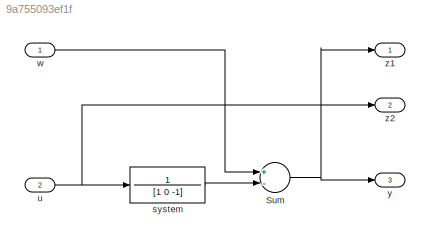
MODEL slx_9a755093ef1f
KIND model
CONFIG AbsTol = auto
CONFIG EnableMultiTasking = on
CONFIG FixedStep = auto
CONFIG MaxStep = auto
CONFIG MinStep = auto
CONFIG RelTol = 1e-3
CONFIG SampleTimeConstraint = Unconstrained
CONFIG Solver = ode45
CONFIG SolverName = ode45
CONFIG StartTime = 0.0
CONFIG StopTime = 10.0
BLOCK [Sum] Sum
  Inputs = +-
  Ports = [2, 1]
BLOCK [TransferFcn] system  
  Denominator = [1 0 -1]
  Numerator = 1
BLOCK [Inport] u
  IconDisplay = Port number
  Port = 2
BLOCK [Inport] w
  IconDisplay = Port number
BLOCK [Outport] y
  IconDisplay = Port number
  Port = 3
BLOCK [Outport] z1
  IconDisplay = Port number
BLOCK [Outport] z2
  IconDisplay = Port number
  Port = 2
NET Sum:1 -> y:1, z1:1
LINE system  :1 -> Sum:2
NET u:1 -> system  :1, z2:1
LINE w:1 -> Sum:1
note: NET lines group one-source signal fan-out (src -> all destinations, sorted); 1:1 wires keep LINE
